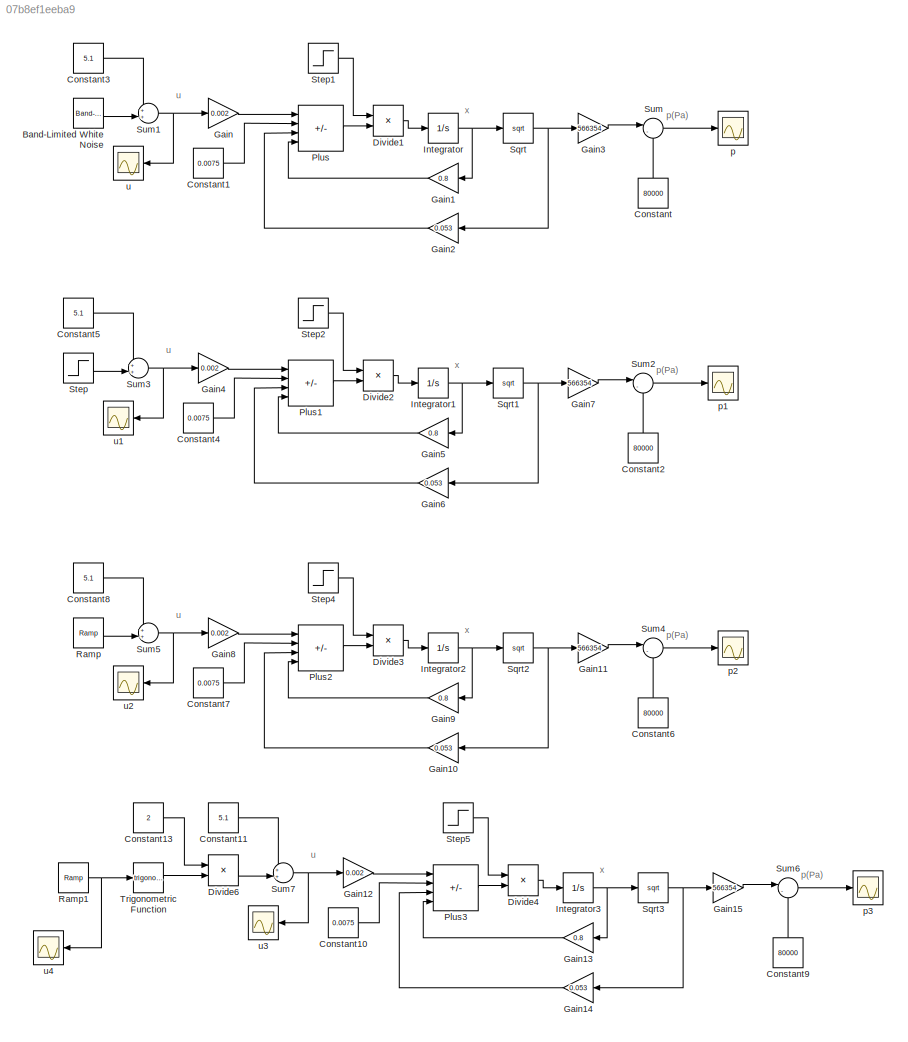
MODEL slx_07b8ef1eeba9
KIND model
CONFIG AbsTol = auto
CONFIG EnableMultiTasking = off
CONFIG FixedStep = auto
CONFIG MaxStep = auto
CONFIG MinStep = auto
CONFIG RelTol = 1e-3
CONFIG SampleTimeConstraint = Unconstrained
CONFIG SolverName = VariableStepAuto
CONFIG StartTime = 0.0
CONFIG StopTime = 100
BLOCK [Reference] Band-Limited White Noise  REF=simulink/Sources/Band-Limited
White Noise
  Ports = [0, 1]
  SourceBlock = simulink/Sources/Band-Limited\nWhite Noise
  SourceProductBaseCode = SL
  SourceType = Band-Limited White Noise.
BLOCK [Constant] Constant
  NameLocation = right
  Value = 80000
BLOCK [Constant] Constant1
  Value = 0.0075
BLOCK [Constant] Constant10
  Value = 0.0075
BLOCK [Constant] Constant11
  Value = 5.1
BLOCK [Constant] Constant13
  Value = 2
BLOCK [Constant] Constant2
  NameLocation = right
  Value = 80000
BLOCK [Constant] Constant3
  Value = 5.1
BLOCK [Constant] Constant4
  Value = 0.0075
BLOCK [Constant] Constant5
  Value = 5.1
BLOCK [Constant] Constant6
  NameLocation = right
  Value = 80000
BLOCK [Constant] Constant7
  Value = 0.0075
BLOCK [Constant] Constant8
  Value = 5.1
BLOCK [Constant] Constant9
  NameLocation = right
  Value = 80000
BLOCK [Product] Divide1
  Inputs = **
  Ports = [2, 1]
BLOCK [Product] Divide2
  Inputs = **
  Ports = [2, 1]
BLOCK [Product] Divide3
  Inputs = **
  Ports = [2, 1]
BLOCK [Product] Divide4
  Inputs = **
  Ports = [2, 1]
BLOCK [Product] Divide6
  Inputs = **
  Ports = [2, 1]
BLOCK [Gain] Gain
  Gain = 0.002
BLOCK [Gain] Gain1
  Gain = 0.8
BLOCK [Gain] Gain10
  Gain = 0.053
BLOCK [Gain] Gain11
  Gain = 566354
BLOCK [Gain] Gain12
  Gain = 0.002
BLOCK [Gain] Gain13
  Gain = 0.8
BLOCK [Gain] Gain14
  Gain = 0.053
BLOCK [Gain] Gain15
  Gain = 566354
BLOCK [Gain] Gain2
  Gain = 0.053
BLOCK [Gain] Gain3
  Gain = 566354
BLOCK [Gain] Gain4
  Gain = 0.002
BLOCK [Gain] Gain5
  Gain = 0.8
BLOCK [Gain] Gain6
  Gain = 0.053
BLOCK [Gain] Gain7
  Gain = 566354
BLOCK [Gain] Gain8
  Gain = 0.002
BLOCK [Gain] Gain9
  Gain = 0.8
BLOCK [Integrator] Integrator
  InitialCondition = 0.01
  Ports = [1, 1]
BLOCK [Integrator] Integrator1
  InitialCondition = 0.01
  Ports = [1, 1]
BLOCK [Integrator] Integrator2
  InitialCondition = 0.01
  Ports = [1, 1]
BLOCK [Integrator] Integrator3
  InitialCondition = 0.01
  Ports = [1, 1]
BLOCK [Sum] Plus
  IconShape = rectangular
  Inputs = +-+-
  Ports = [4, 1]
BLOCK [Sum] Plus1
  IconShape = rectangular
  Inputs = +-+-
  Ports = [4, 1]
BLOCK [Sum] Plus2
  IconShape = rectangular
  Inputs = +-+-
  Ports = [4, 1]
BLOCK [Sum] Plus3
  IconShape = rectangular
  Inputs = +-+-
  Ports = [4, 1]
BLOCK [Reference] Ramp  REF=simulink/Sources/Ramp
  Ports = [0, 1]
  SourceBlock = simulink/Sources/Ramp
  SourceProductBaseCode = SL
  SourceType = Ramp
BLOCK [Reference] Ramp1  REF=simulink/Sources/Ramp
  Ports = [0, 1]
  SourceBlock = simulink/Sources/Ramp
  SourceProductBaseCode = SL
  SourceType = Ramp
BLOCK [Sqrt] Sqrt
BLOCK [Sqrt] Sqrt1
BLOCK [Sqrt] Sqrt2
BLOCK [Sqrt] Sqrt3
BLOCK [Step] Step
  After = 0.51
  SampleTime = 0.01
  Time = 0
BLOCK [Step] Step1
  SampleTime = 0
  Time = 0
BLOCK [Step] Step2
  SampleTime = 0
  Time = 0
BLOCK [Step] Step4
  SampleTime = 0
  Time = 0
BLOCK [Step] Step5
  SampleTime = 0
  Time = 0
BLOCK [Sum] Sum
  Inputs = |-+
  Ports = [2, 1]
BLOCK [Sum] Sum1
  Inputs = ++|
  Ports = [2, 1]
BLOCK [Sum] Sum2
  Inputs = |-+
  Ports = [2, 1]
BLOCK [Sum] Sum3
  Inputs = ++|
  Ports = [2, 1]
BLOCK [Sum] Sum4
  Inputs = |-+
  Ports = [2, 1]
BLOCK [Sum] Sum5
  Inputs = ++|
  Ports = [2, 1]
BLOCK [Sum] Sum6
  Inputs = |-+
  Ports = [2, 1]
BLOCK [Sum] Sum7
  Inputs = ++|
  Ports = [2, 1]
BLOCK [Trigonometry] Trigonometric Function
  Ports = [1, 1]
BLOCK [Scope] p
  Floating = off
  NumInputPorts = 1
  Ports = [1]
  ScopeSpecificationString = Simulink.scopes.TimeScopeBlockCfg('CurrentConfiguration', extmgr.ConfigurationSet(extmgr.Configuration('Core','General UI',true),extmgr.Configuration('Core','Source UI',true),extmgr.Configuration('Sources','WiredSimulink',true,'DataLogging',true,'DataLoggingVariableName','train_p','DataLoggingSaveFormat','Array'),extmgr.Configuration('Visuals','Time Domain',true,'SerializedDisplays',{struct('MinYL...<+1534ch>
BLOCK [Scope] p1
  Floating = off
  NumInputPorts = 1
  Ports = [1]
  ScopeSpecificationString = Simulink.scopes.TimeScopeBlockCfg('CurrentConfiguration', extmgr.ConfigurationSet(extmgr.Configuration('Core','General UI',true),extmgr.Configuration('Core','Source UI',true),extmgr.Configuration('Sources','WiredSimulink',true,'DataLogging',true,'DataLoggingVariableName','true_p_step','DataLoggingSaveFormat','Array'),extmgr.Configuration('Visuals','Time Domain',true,'SerializedDisplays',{struct('M...<+1539ch>
BLOCK [Scope] p2
  Floating = off
  NumInputPorts = 1
  Ports = [1]
  ScopeSpecificationString = Simulink.scopes.TimeScopeBlockCfg('CurrentConfiguration', extmgr.ConfigurationSet(extmgr.Configuration('Core','General UI',true),extmgr.Configuration('Core','Source UI',true),extmgr.Configuration('Sources','WiredSimulink',true,'DataLogging',true,'DataLoggingVariableName','true_p_ramp','DataLoggingSaveFormat','Array'),extmgr.Configuration('Visuals','Time Domain',true,'SerializedDisplays',{struct('M...<+1564ch>
BLOCK [Scope] p3
  Floating = off
  NumInputPorts = 1
  Ports = [1]
  ScopeSpecificationString = Simulink.scopes.TimeScopeBlockCfg('CurrentConfiguration', extmgr.ConfigurationSet(extmgr.Configuration('Core','General UI',true),extmgr.Configuration('Core','Source UI',true),extmgr.Configuration('Sources','WiredSimulink',true,'DataLogging',true,'DataLoggingVariableName','true_p_sin','DataLoggingSaveFormat','Array'),extmgr.Configuration('Visuals','Time Domain',true,'SerializedDisplays',{struct('Mi...<+1538ch>
BLOCK [Scope] u
  Floating = off
  NumInputPorts = 1
  Ports = [1]
  ScopeSpecificationString = Simulink.scopes.TimeScopeBlockCfg('CurrentConfiguration', extmgr.ConfigurationSet(extmgr.Configuration('Core','General UI',true),extmgr.Configuration('Core','Source UI',true),extmgr.Configuration('Sources','WiredSimulink',true,'DataLoggingVariableName','train_u','DataLogging',true,'DataLoggingSaveFormat','Array'),extmgr.Configuration('Visuals','Time Domain',true,'SerializedDisplays',{struct('MinYL...<+1513ch>
BLOCK [Scope] u1
  Floating = off
  NumInputPorts = 1
  Ports = [1]
  ScopeSpecificationString = Simulink.scopes.TimeScopeBlockCfg('CurrentConfiguration', extmgr.ConfigurationSet(extmgr.Configuration('Core','General UI',true),extmgr.Configuration('Core','Source UI',true),extmgr.Configuration('Sources','WiredSimulink',true,'DataLoggingVariableName','true_u_step','DataLogging',true,'DataLoggingSaveFormat','Array'),extmgr.Configuration('Visuals','Time Domain',true,'SerializedDisplays',{struct('M...<+1540ch>
BLOCK [Scope] u2
  Floating = off
  NumInputPorts = 1
  Ports = [1]
  ScopeSpecificationString = Simulink.scopes.TimeScopeBlockCfg('CurrentConfiguration', extmgr.ConfigurationSet(extmgr.Configuration('Core','General UI',true),extmgr.Configuration('Core','Source UI',true),extmgr.Configuration('Sources','WiredSimulink',true,'DataLoggingVariableName','true_u_ramp','DataLogging',true,'DataLoggingSaveFormat','Array'),extmgr.Configuration('Visuals','Time Domain',true,'SerializedDisplays',{struct('M...<+1540ch>
BLOCK [Scope] u3
  Floating = off
  NumInputPorts = 1
  Ports = [1]
  ScopeSpecificationString = Simulink.scopes.TimeScopeBlockCfg('CurrentConfiguration', extmgr.ConfigurationSet(extmgr.Configuration('Core','General UI',true),extmgr.Configuration('Core','Source UI',true),extmgr.Configuration('Sources','WiredSimulink',true,'DataLoggingVariableName','true_u_sin','DataLogging',true,'DataLoggingSaveFormat','Array'),extmgr.Configuration('Visuals','Time Domain',true,'SerializedDisplays',{struct('Mi...<+1535ch>
BLOCK [Scope] u4
  Floating = off
  NumInputPorts = 1
  Ports = [1]
  ScopeSpecificationString = Simulink.scopes.TimeScopeBlockCfg('CurrentConfiguration', extmgr.ConfigurationSet(extmgr.Configuration('Core','General UI',true),extmgr.Configuration('Core','Source UI',true),extmgr.Configuration('Sources','WiredSimulink',true,'DataLoggingVariableName','true_u_sin1','DataLogging',true,'DataLoggingSaveFormat','Array'),extmgr.Configuration('Visuals','Time Domain',true,'SerializedDisplays',{struct('M...<+1541ch>
ANNOTATION (root): p(Pa)
ANNOTATION (root): u
ANNOTATION (root): x
LINE Band-Limited White Noise:1 -> Sum1:2
LINE Constant10:1 -> Plus3:2
LINE Constant11:1 -> Sum7:1
LINE Constant13:1 -> Divide6:1
LINE Constant1:1 -> Plus:2
LINE Constant2:1 -> Sum2:2
LINE Constant3:1 -> Sum1:1
LINE Constant4:1 -> Plus1:2
LINE Constant5:1 -> Sum3:1
LINE Constant6:1 -> Sum4:2
LINE Constant7:1 -> Plus2:2
LINE Constant8:1 -> Sum5:1
LINE Constant9:1 -> Sum6:2
LINE Constant:1 -> Sum:2
LINE Divide1:1 -> Integrator:1
LINE Divide2:1 -> Integrator1:1
LINE Divide3:1 -> Integrator2:1
LINE Divide4:1 -> Integrator3:1
LINE Divide6:1 -> Sum7:2
LINE Gain10:1 -> Plus2:3
LINE Gain11:1 -> Sum4:1
LINE Gain12:1 -> Plus3:1
LINE Gain13:1 -> Plus3:4
LINE Gain14:1 -> Plus3:3
LINE Gain15:1 -> Sum6:1
LINE Gain1:1 -> Plus:4
LINE Gain2:1 -> Plus:3
LINE Gain3:1 -> Sum:1
LINE Gain4:1 -> Plus1:1
LINE Gain5:1 -> Plus1:4
LINE Gain6:1 -> Plus1:3
LINE Gain7:1 -> Sum2:1
LINE Gain8:1 -> Plus2:1
LINE Gain9:1 -> Plus2:4
LINE Gain:1 -> Plus:1
NET Integrator1:1 -> Gain5:1, Sqrt1:1
NET Integrator2:1 -> Gain9:1, Sqrt2:1
NET Integrator3:1 -> Gain13:1, Sqrt3:1
NET Integrator:1 -> Gain1:1, Sqrt:1
LINE Plus1:1 -> Divide2:2
LINE Plus2:1 -> Divide3:2
LINE Plus3:1 -> Divide4:2
LINE Plus:1 -> Divide1:2
NET Ramp1:1 -> Trigonometric Function:1, u4:1
LINE Ramp:1 -> Sum5:2
NET Sqrt1:1 -> Gain6:1, Gain7:1
NET Sqrt2:1 -> Gain10:1, Gain11:1
NET Sqrt3:1 -> Gain14:1, Gain15:1
NET Sqrt:1 -> Gain2:1, Gain3:1
LINE Step1:1 -> Divide1:1
LINE Step2:1 -> Divide2:1
LINE Step4:1 -> Divide3:1
LINE Step5:1 -> Divide4:1
LINE Step:1 -> Sum3:2
NET Sum1:1 -> Gain:1, u:1
LINE Sum2:1 -> p1:1
NET Sum3:1 -> Gain4:1, u1:1
LINE Sum4:1 -> p2:1
NET Sum5:1 -> Gain8:1, u2:1
LINE Sum6:1 -> p3:1
NET Sum7:1 -> Gain12:1, u3:1
LINE Sum:1 -> p:1
LINE Trigonometric Function:1 -> Divide6:2
note: NET lines group one-source signal fan-out (src -> all destinations, sorted); 1:1 wires keep LINE
